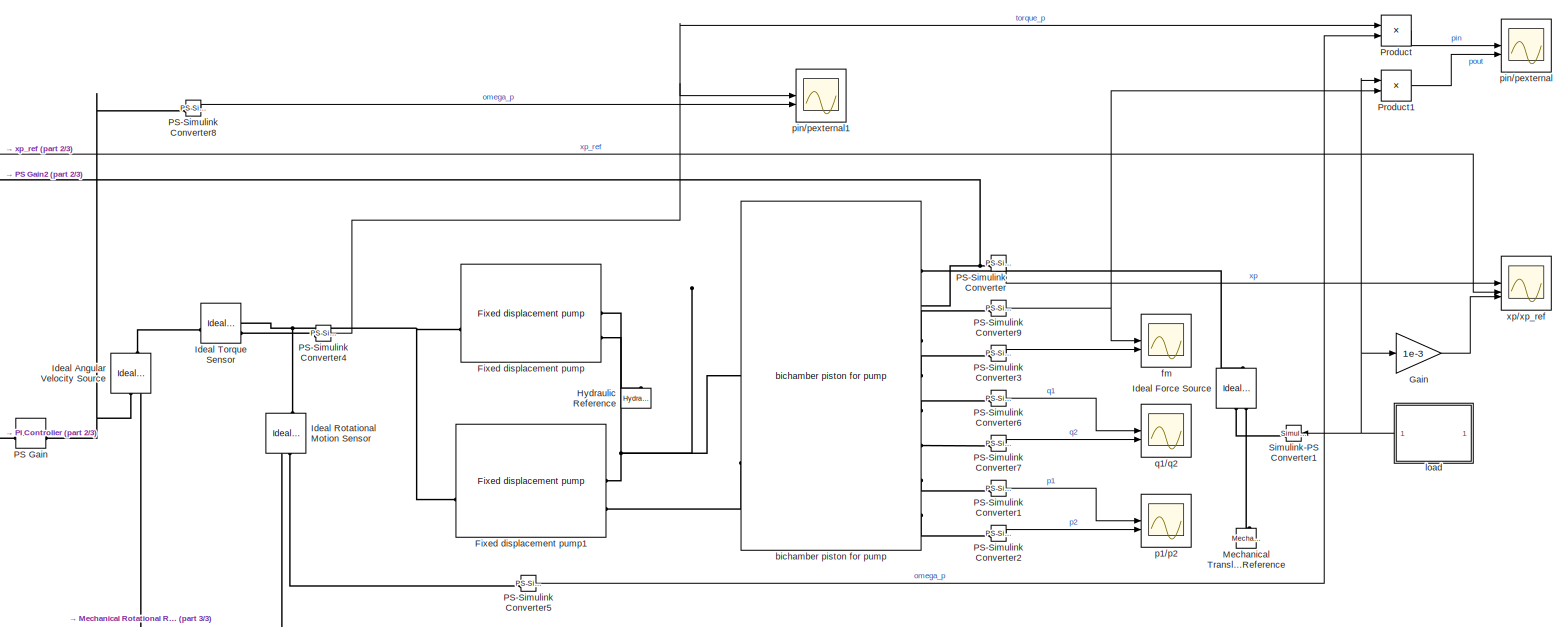
[diagram: root canvas - part 1/3, most of the canvas]
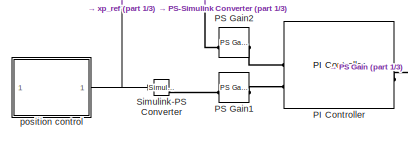
[diagram: root canvas - part 2/3, middle left region]
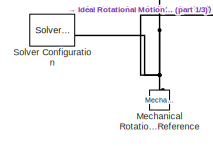
[diagram: root canvas - part 3/3, bottom left region]
MODEL slx_7221f8bf3b57
KIND model
CONFIG AbsTol = auto
CONFIG EnableMultiTasking = off
CONFIG FixedStep = auto
CONFIG MaxStep = tsample
CONFIG MinStep = auto
CONFIG RelTol = auto
CONFIG SampleTimeConstraint = Unconstrained
CONFIG SolverName = daessc
CONFIG StartTime = 0.0
CONFIG StopTime = 200
BLOCK [Reference] Fixed displacement pump  REF=fixed_displacement_pump_lib/Fixed displacement
pump
  SourceBlock = fixed_displacement_pump_lib/Fixed displacement\npump
  SourceType = Fixed displacement\npump
BLOCK [Reference] Fixed displacement pump1  REF=fixed_displacement_pump_lib/Fixed displacement
pump
  SourceBlock = fixed_displacement_pump_lib/Fixed displacement\npump
  SourceType = Fixed displacement\npump
BLOCK [Gain] Gain
  Gain = 1e-3
BLOCK [Reference] Hydraulic Reference  REF=fl_lib/Hydraulic/Hydraulic Elements/Hydraulic Reference
  NameLocation = right
  SourceBlock = fl_lib/Hydraulic/Hydraulic Elements/Hydraulic Reference
  SourceType = Hydraulic Reference
BLOCK [Reference] Ideal Angular Velocity Source  REF=fl_lib/Mechanical/Mechanical Sources/Ideal Angular
Velocity Source
  NameLocation = right
  SourceBlock = fl_lib/Mechanical/Mechanical Sources/Ideal Angular\nVelocity Source
  SourceType = Ideal Angular\nVelocity Source
BLOCK [Reference] Ideal Force Source  REF=fl_lib/Mechanical/Mechanical Sources/Ideal Force Source
  NameLocation = right
  SourceBlock = fl_lib/Mechanical/Mechanical Sources/Ideal Force Source
  SourceType = Ideal Force Source
BLOCK [Reference] Ideal Rotational Motion Sensor  REF=fl_lib/Mechanical/Mechanical Sensors/Ideal Rotational
Motion Sensor
  NameLocation = left
  SourceBlock = fl_lib/Mechanical/Mechanical Sensors/Ideal Rotational\nMotion Sensor
  SourceType = Ideal Rotational\nMotion Sensor
BLOCK [Reference] Ideal Torque Sensor  REF=fl_lib/Mechanical/Mechanical Sensors/Ideal Torque Sensor
  SourceBlock = fl_lib/Mechanical/Mechanical Sensors/Ideal Torque Sensor
  SourceType = Ideal Torque Sensor
BLOCK [Reference] Mechanical Rotational Reference  REF=fl_lib/Mechanical/Rotational Elements/Mechanical
Rotational Reference
  NameLocation = right
  SourceBlock = fl_lib/Mechanical/Rotational Elements/Mechanical\nRotational Reference
  SourceType = Mechanical\nRotational Reference
BLOCK [Reference] Mechanical Translational Reference  REF=fl_lib/Mechanical/Translational
Elements/Mechanical
Translational
Reference
  NameLocation = right
  SourceBlock = fl_lib/Mechanical/Translational\nElements/Mechanical\nTranslational\nReference
  SourceType = Mechanical\nTranslational\nReference
BLOCK [Reference] PI Controller  REF=pi_ctrl_lib/PI Controller
  SourceBlock = pi_ctrl_lib/PI Controller
  SourceType = PI Controller
BLOCK [Reference] PS Gain  REF=fl_lib/Physical Signals/Functions/PS Gain
  SourceBlock = fl_lib/Physical Signals/Functions/PS Gain
  SourceType = PS Gain
BLOCK [Reference] PS Gain1  REF=fl_lib/Physical Signals/Functions/PS Gain
  SourceBlock = fl_lib/Physical Signals/Functions/PS Gain
  SourceType = PS Gain
BLOCK [Reference] PS Gain2  REF=fl_lib/Physical Signals/Functions/PS Gain
  SourceBlock = fl_lib/Physical Signals/Functions/PS Gain
  SourceType = PS Gain
BLOCK [Reference] PS-Simulink Converter  REF=nesl_utility/PS-Simulink
Converter
  SourceBlock = nesl_utility/PS-Simulink\nConverter
  SourceType = PS-Simulink\nConverter
BLOCK [Reference] PS-Simulink Converter1  REF=nesl_utility/PS-Simulink
Converter
  SourceBlock = nesl_utility/PS-Simulink\nConverter
  SourceType = PS-Simulink\nConverter
BLOCK [Reference] PS-Simulink Converter2  REF=nesl_utility/PS-Simulink
Converter
  SourceBlock = nesl_utility/PS-Simulink\nConverter
  SourceType = PS-Simulink\nConverter
BLOCK [Reference] PS-Simulink Converter3  REF=nesl_utility/PS-Simulink
Converter
  SourceBlock = nesl_utility/PS-Simulink\nConverter
  SourceType = PS-Simulink\nConverter
BLOCK [Reference] PS-Simulink Converter4  REF=nesl_utility/PS-Simulink
Converter
  SourceBlock = nesl_utility/PS-Simulink\nConverter
  SourceType = PS-Simulink\nConverter
BLOCK [Reference] PS-Simulink Converter5  REF=nesl_utility/PS-Simulink
Converter
  SourceBlock = nesl_utility/PS-Simulink\nConverter
  SourceType = PS-Simulink\nConverter
BLOCK [Reference] PS-Simulink Converter6  REF=nesl_utility/PS-Simulink
Converter
  SourceBlock = nesl_utility/PS-Simulink\nConverter
  SourceType = PS-Simulink\nConverter
BLOCK [Reference] PS-Simulink Converter7  REF=nesl_utility/PS-Simulink
Converter
  SourceBlock = nesl_utility/PS-Simulink\nConverter
  SourceType = PS-Simulink\nConverter
BLOCK [Reference] PS-Simulink Converter8  REF=nesl_utility/PS-Simulink
Converter
  SourceBlock = nesl_utility/PS-Simulink\nConverter
  SourceType = PS-Simulink\nConverter
BLOCK [Reference] PS-Simulink Converter9  REF=nesl_utility/PS-Simulink
Converter
  SourceBlock = nesl_utility/PS-Simulink\nConverter
  SourceType = PS-Simulink\nConverter
BLOCK [Product] Product
BLOCK [Product] Product1
BLOCK [Reference] Simulink-PS Converter  REF=nesl_utility/Simulink-PS
Converter
  SourceBlock = nesl_utility/Simulink-PS\nConverter
  SourceType = Simulink-PS\nConverter
BLOCK [Reference] Simulink-PS Converter1  REF=nesl_utility/Simulink-PS
Converter
  NameLocation = top
  SourceBlock = nesl_utility/Simulink-PS\nConverter
  SourceType = Simulink-PS\nConverter
BLOCK [Reference] Solver Configuration  REF=nesl_utility/Solver
Configuration
  SourceBlock = nesl_utility/Solver\nConfiguration
  SourceType = Solver\nConfiguration
BLOCK [Reference] bichamber piston for pump  REF=bichamber_piston_for_pump_lib/bichamber piston for
pump
  SourceBlock = bichamber_piston_for_pump_lib/bichamber piston for\npump
  SourceType = bichamber piston for\npump
BLOCK [Scope] fm
  ActiveDisplayYMaximum = 0.0625
  ActiveDisplayYMinimum = -0.0625
  DataLoggingVariableName = ScopeData4
  Floating = off
  GraphicalSettings = {"GraphicalSettings":{"LegacySettings":true,"Style":{"AxesScalingProperties":{"ScaleAxesLimitsAtStop":false},"Style":{"AxesColor":"[0 0 0]","ChannelNames":["",""],"ColorOrder":"[1 1 0.0666666666666667;0.0745098039215686 0.623529411764706 1;1 0.411764705882353 0.16078431372549;0.392156862745098 0.831372549019608 0.0745098039215686;0.717647058823529 0.274509803921569 1;0.0588235294117647 1 1;1 0.074...<+698ch>
  LayoutDimensionsString = [2 1]
  MultipleDisplayCache = [{"MaxYLimMag":0.0625,"MaxYLimReal":0.0625,"MinYLimMag":0,"MinYLimReal":-0.0625,"PlotAsMagnitudePhase":false,"ShowGrid":true,"ShowLegend":true,"Title":"%<SignalLabel>","YLabel":""},{"MaxYLimMag":130832.19792,"MaxYLimReal":22500.71186,"MinYLimMag":0,"MinYLimReal":-2500.07917,"PlotAsMagnitudePhase":false,"ShowGrid":true,"ShowLegend":true,"Title":"%<SignalLabel>","YLabel":""}]
  NumInputPorts = 2
  SampleTime = tsample
  ScopeFrameLocation = window
  ShowLegend = on
  Visible = on
  WasSavedAsWebScope = on
  WindowPosition = [289.000000,175.000000,1260.000000,676.000000,]
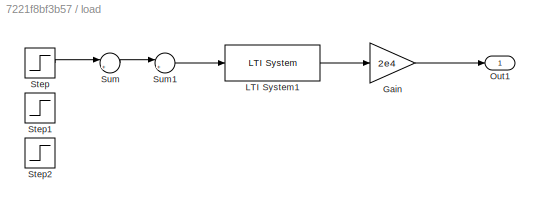
BLOCK [SubSystem] load
BLOCK [Gain] load/Gain
  Gain = 2e4
BLOCK [Reference] load/LTI System1  REF=cstblocks/LTI System
  SourceBlock = cstblocks/LTI System
  SourceType = LTI Block
BLOCK [Outport] load/Out1
BLOCK [Step] load/Step
  SampleTime = 0
  Time = 10
BLOCK [Step] load/Step1
  After = -2
  SampleTime = 0
  Time = 60
BLOCK [Step] load/Step2
  After = 0.25
  SampleTime = 0
  Time = 125
BLOCK [Sum] load/Sum
  Inputs = |++
BLOCK [Sum] load/Sum1
  Inputs = |++
BLOCK [Scope] p1//p2
  ActiveDisplayYMaximum = 142.38578
  ActiveDisplayYMinimum = 29.88315
  DataLoggingVariableName = ScopeData3
  Floating = off
  GraphicalSettings = {"GraphicalSettings":{"LegacySettings":true,"Style":{"AxesScalingProperties":{"ScaleAxesLimitsAtStop":false},"Style":{"AxesColor":"[0 0 0]","ChannelNames":[""],"ColorOrder":"[1 1 0.0666666666666667;0.0745098039215686 0.623529411764706 1;1 0.411764705882353 0.16078431372549;0.392156862745098 0.831372549019608 0.0745098039215686;0.717647058823529 0.274509803921569 1;0.0588235294117647 1 1;1 0.074509...<+642ch>  <repeated x4 — deduplicated; at blocks: p1/p2, pin/pexternal, pin/pexternal1, q1/q2>
  MultipleDisplayCache = [{"MaxYLimMag":142.38578,"MaxYLimReal":142.38578,"MinYLimMag":29.88315,"MinYLimReal":29.88315,"PlotAsMagnitudePhase":false,"ShowGrid":true,"ShowLegend":true,"Title":"%<SignalLabel>","YLabel":""}]
  NumInputPorts = 2
  SampleTime = tsample
  ScopeFrameLocation = window
  ShowLegend = on
  Visible = on
  WasSavedAsWebScope = on
  WindowPosition = [299.000000,273.000000,1367.000000,676.000000,]
BLOCK [Scope] pin//pexternal
  ActiveDisplayYMaximum = 2792.12403
  ActiveDisplayYMinimum = -1421.34711
  DataLoggingVariableName = ScopeData2
  Floating = off
  MultipleDisplayCache = [{"MaxYLimMag":2792.12403,"MaxYLimReal":2792.12403,"MinYLimMag":0,"MinYLimReal":-1421.34711,"PlotAsMagnitudePhase":false,"ShowGrid":true,"ShowLegend":true,"Title":"%<SignalLabel>","YLabel":""}]
  NumInputPorts = 2
  SampleTime = tsample
  ShowLegend = on
  TimeDisplayOffset = -0
  WasSavedAsWebScope = on
  WindowPosition = [2024 354 1523 676]
BLOCK [Scope] pin//pexternal1
  ActiveDisplayYMaximum = 624.9998
  ActiveDisplayYMinimum = -625.00019
  DataLoggingVariableName = ScopeData1
  Floating = off
  MultipleDisplayCache = [{"MaxYLimMag":625.00019,"MaxYLimReal":624.9998,"MinYLimMag":0,"MinYLimReal":-625.00019,"PlotAsMagnitudePhase":false,"ShowGrid":true,"ShowLegend":true,"Title":"%<SignalLabel>","YLabel":""}]
  NumInputPorts = 2
  SampleTime = tsample
  ShowLegend = on
  TimeDisplayOffset = -0
  WasSavedAsWebScope = on
  WindowPosition = [2049 366 1523 676]
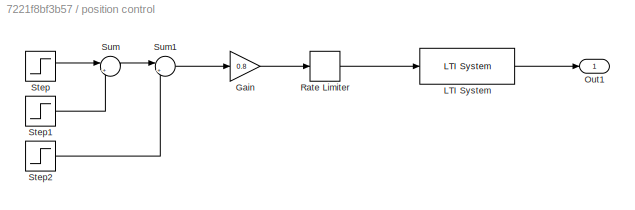
BLOCK [SubSystem] position control
BLOCK [Gain] position control/Gain
  Gain = 0.8
BLOCK [Reference] position control/LTI System  REF=cstblocks/LTI System
  SourceBlock = cstblocks/LTI System
  SourceType = LTI Block
BLOCK [Outport] position control/Out1
BLOCK [RateLimiter] position control/Rate Limiter
  FallingSlewLimit = -0.05
  RisingSlewLimit = 0.05
  SampleTimeMode = inherited
BLOCK [Step] position control/Step
  SampleTime = 0
  Time = 20
BLOCK [Step] position control/Step1
  After = -2
  SampleTime = 0
  Time = 60
BLOCK [Step] position control/Step2
  After = 2
  SampleTime = 0
  Time = 125
BLOCK [Sum] position control/Sum
  Inputs = |++
BLOCK [Sum] position control/Sum1
  Inputs = |++
BLOCK [Scope] q1//q2
  ActiveDisplayYMaximum = 30
  ActiveDisplayYMinimum = -30
  DataLoggingVariableName = ScopeData3
  Floating = off
  MultipleDisplayCache = [{"MaxYLimMag":30,"MaxYLimReal":30,"MinYLimMag":0,"MinYLimReal":-30,"PlotAsMagnitudePhase":false,"ShowGrid":true,"ShowLegend":true,"Title":"%<SignalLabel>","YLabel":""}]
  NumInputPorts = 2
  SampleTime = tsample
  ShowLegend = on
  WasSavedAsWebScope = on
  WindowPosition = [168 319 1523 676]
BLOCK [Scope] xp//xp_ref
  ActiveDisplayYMaximum = 22.6
  ActiveDisplayYMinimum = -3.4
  DataLoggingVariableName = ScopeData2
  Floating = off
  GraphicalSettings = {"GraphicalSettings":{"LegacySettings":true,"Style":{"AxesScalingProperties":{"ScaleAxesLimitsAtStop":false},"Style":{"AxesColor":"[0 0 0]","ChannelNames":[""],"ColorOrder":"[1 1 0.0666666666666667;0.0745098039215686 0.623529411764706 1;1 0.411764705882353 0.16078431372549;0.392156862745098 0.831372549019608 0.0745098039215686;0.717647058823529 0.274509803921569 1;0.0588235294117647 1 1;1 0.074509...<+644ch>
  MultipleDisplayCache = [{"MaxYLimMag":22.6,"MaxYLimReal":22.6,"MinYLimMag":0,"MinYLimReal":-3.4,"PlotAsMagnitudePhase":false,"ShowGrid":true,"ShowLegend":true,"Title":"%<SignalLabel>","YLabel":""}]
  NumInputPorts = 3
  SampleTime = tsample
  ShowLegend = on
  WasSavedAsWebScope = on
  WindowPosition = [225 112 1452 760]
LINE Gain:1 -> xp//xp_ref:3
LINE PS-Simulink Converter1:1 -> p1//p2:1
LINE PS-Simulink Converter2:1 -> p1//p2:2
LINE PS-Simulink Converter3:1 -> fm:2
NET PS-Simulink Converter4:1 -> Product:1, pin//pexternal1:1
LINE PS-Simulink Converter5:1 -> Product:2
LINE PS-Simulink Converter6:1 -> q1//q2:1
LINE PS-Simulink Converter7:1 -> q1//q2:2
LINE PS-Simulink Converter8:1 -> pin//pexternal1:2
NET PS-Simulink Converter9:1 -> Product1:2, fm:1
LINE PS-Simulink Converter:1 -> xp//xp_ref:1
LINE Product1:1 -> pin//pexternal:2
LINE Product:1 -> pin//pexternal:1
LINE load/Gain:1 -> load/Out1:1
LINE load/LTI System1:1 -> load/Gain:1
LINE load/Step:1 -> load/Sum:1
LINE load/Sum1:1 -> load/LTI System1:1
LINE load/Sum:1 -> load/Sum1:1
NET load:1 -> Gain:1, Product1:1, Simulink-PS Converter1:1
LINE position control/Gain:1 -> position control/Rate Limiter:1
LINE position control/LTI System:1 -> position control/Out1:1
LINE position control/Rate Limiter:1 -> position control/LTI System:1
LINE position control/Step1:1 -> position control/Sum:2
LINE position control/Step2:1 -> position control/Sum1:2
LINE position control/Step:1 -> position control/Sum:1
LINE position control/Sum1:1 -> position control/Gain:1
LINE position control/Sum:1 -> position control/Sum1:1
NET position control:1 -> Simulink-PS Converter:1, xp//xp_ref:2
PNET net1: Fixed displacement pump1:LConn1 -- Fixed displacement pump:LConn1 -- Ideal Rotational Motion Sensor:LConn1 -- Ideal Torque Sensor:RConn1
PNET net2: Fixed displacement pump1:RConn1 -- Fixed displacement pump:RConn1 -- bichamber piston for pump:LConn1
PLINE Fixed displacement pump1:RConn2 -- bichamber piston for pump:LConn2
PLINE Fixed displacement pump:RConn2 -- Hydraulic Reference:LConn1
PLINE Ideal Angular Velocity Source:LConn1 -- Ideal Torque Sensor:LConn1
PNET net3: Ideal Angular Velocity Source:RConn1 -- PS Gain:RConn1 -- PS-Simulink Converter8:LConn1
PNET net4: Ideal Angular Velocity Source:RConn2 -- Ideal Rotational Motion Sensor:RConn1 -- Mechanical Rotational Reference:LConn1 -- Solver Configuration:RConn1
PLINE Ideal Force Source:LConn1 -- bichamber piston for pump:RConn1
PLINE Ideal Force Source:RConn1 -- Simulink-PS Converter1:RConn1
PLINE Ideal Force Source:RConn2 -- Mechanical Translational Reference:LConn1
PLINE Ideal Rotational Motion Sensor:RConn2 -- PS-Simulink Converter5:LConn1
PLINE Ideal Torque Sensor:RConn2 -- PS-Simulink Converter4:LConn1
PLINE PI Controller:LConn1 -- PS Gain2:RConn1
PLINE PI Controller:LConn2 -- PS Gain1:RConn1
PLINE PI Controller:RConn1 -- PS Gain:LConn1
PLINE PS Gain1:LConn1 -- Simulink-PS Converter:RConn1
PNET net5: PS Gain2:LConn1 -- PS-Simulink Converter:LConn1 -- bichamber piston for pump:RConn2
PLINE PS-Simulink Converter1:LConn1 -- bichamber piston for pump:RConn7
PLINE PS-Simulink Converter2:LConn1 -- bichamber piston for pump:RConn8
PLINE PS-Simulink Converter3:LConn1 -- bichamber piston for pump:RConn4
PLINE PS-Simulink Converter6:LConn1 -- bichamber piston for pump:RConn5
PLINE PS-Simulink Converter7:LConn1 -- bichamber piston for pump:RConn6
PLINE PS-Simulink Converter9:LConn1 -- bichamber piston for pump:RConn3
note: NET lines group one-source signal fan-out (src -> all destinations, sorted); 1:1 wires keep LINE; PNET lines group multi-terminal physical nets as a canonical sorted terminal list (undirected conserving connections); 2-terminal nets keep the pairwise PLINE form
